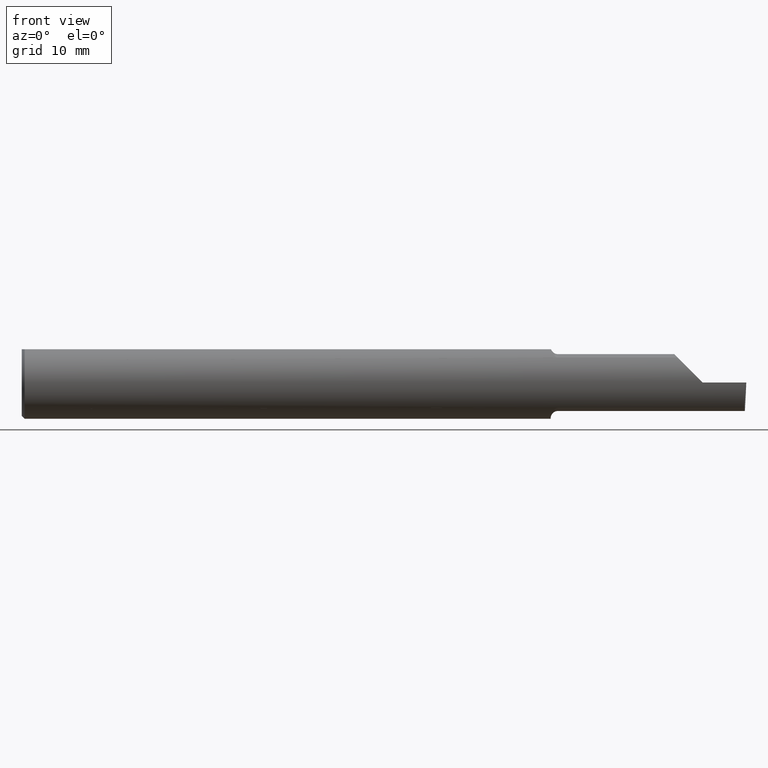
[diagram: clean part render]
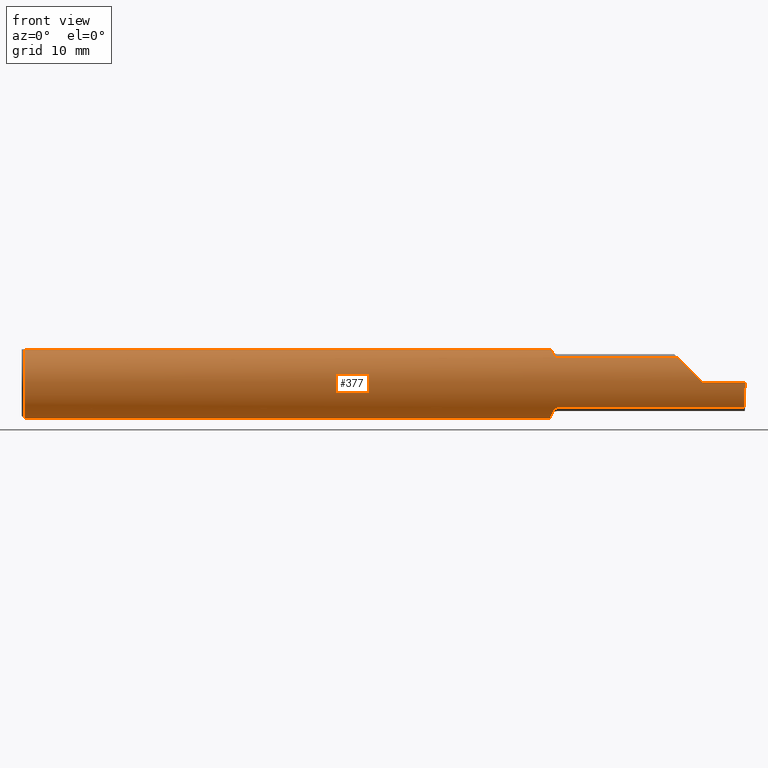
[diagram: same view with one face highlighted and labeled with its STEP entity id]
A machine part, front view. The second image highlights one B-rep face of the part: STEP entity #377.
In plain terms, the highlighted cylindrical surface (edge-blend (fillet) strip) has radius 3.175 mm, axis along (-1, -0, -0).
Its self-contained STEP definition (entity closure, byte-faithful):
#14 = CARTESIAN_POINT ( 'NONE',  ( 2.350000000000000089, -0.1250000000000000278, 1.836970198721028825E-17 ) ) ;
#24 = VECTOR ( 'NONE', #164, 39.37007874015748143 ) ;
#25 = CARTESIAN_POINT ( 'NONE',  ( 0.01000000000000042348, 0.000000000000000000, 0.000000000000000000 ) ) ;
#26 = ORIENTED_EDGE ( 'NONE', *, *, #247, .F. ) ;
#28 =( BOUNDED_CURVE ( )  B_SPLINE_CURVE ( 3, ( #49, #229, #670, #232 ),
 .UNSPECIFIED., .F., .F. ) 
 B_SPLINE_CURVE_WITH_KNOTS ( ( 4, 4 ),
 ( 0.3451966888490694552, 1.107331509589587926 ),
 .UNSPECIFIED. ) 
 CURVE ( )  GEOMETRIC_REPRESENTATION_ITEM ( )  RATIONAL_B_SPLINE_CURVE ( ( 1.000000000000000000, 0.9521787881681380572, 0.9521787881681380572, 1.000000000000000000 ) ) 
 REPRESENTATION_ITEM ( '' )  );
#29 = CARTESIAN_POINT ( 'NONE',  ( 1.834055883886139826, -0.07758562614434727500, 0.09811804109501491566 ) ) ;
#34 = VERTEX_POINT ( 'NONE', #697 ) ;
#36 = CARTESIAN_POINT ( 'NONE',  ( 1.845169762358874088, -0.08954173371311466290, 0.08723520050116025104 ) ) ;
#44 = DIRECTION ( 'NONE',  ( 1.000000000000000000, 0.000000000000000000, 0.000000000000000000 ) ) ;
#48 = ORIENTED_EDGE ( 'NONE', *, *, #448, .F. ) ;
#49 = CARTESIAN_POINT ( 'NONE',  ( 2.493431982762754462, -0.09042045454545424854, -0.08630840862739529162 ) ) ;
#51 = CARTESIAN_POINT ( 'NONE',  ( 1.839282510427138417, -0.08510692115742991837, -0.09158169095606871757 ) ) ;
#57 = VERTEX_POINT ( 'NONE', #72 ) ;
#66 = CARTESIAN_POINT ( 'NONE',  ( 2.263691591372603895, -0.09042045454545429017, 0.08630840862739526387 ) ) ;
#71 = DIRECTION ( 'NONE',  ( 0.000000000000000000, 0.000000000000000000, -1.000000000000000000 ) ) ;
#72 = CARTESIAN_POINT ( 'NONE',  ( 1.849999999999999867, -0.09042045454545424854, -0.08630840862739527775 ) ) ;
#83 = ORIENTED_EDGE ( 'NONE', *, *, #310, .F. ) ;
#88 = FACE_OUTER_BOUND ( 'NONE', #415, .T. ) ;
#89 = ORIENTED_EDGE ( 'NONE', *, *, #289, .F. ) ;
#92 = CARTESIAN_POINT ( 'NONE',  ( 1.829267307214415439, -0.06631395538221414310, 0.1063681193389229424 ) ) ;
#104 = CARTESIAN_POINT ( 'NONE',  ( 1.847488493957806455, -0.09042045454585180553, 0.08630840862697891636 ) ) ;
#105 = VERTEX_POINT ( 'NONE', #810 ) ;
#121 = CARTESIAN_POINT ( 'NONE',  ( 1.825730677800976975, -0.04400000000000007377, -0.1169999999999999790 ) ) ;
#137 = VERTEX_POINT ( 'NONE', #66 ) ;
#141 = CYLINDRICAL_SURFACE ( 'NONE', #693, 0.1250000000000000000 ) ;
#143 = CIRCLE ( 'NONE', #196, 0.1250000000000000000 ) ;
#146 = AXIS2_PLACEMENT_3D ( 'NONE', #236, #673, #614 ) ;
#147 = CARTESIAN_POINT ( 'NONE',  ( 1.849999999999999867, -0.09042045454545420691, 0.08630840862739531938 ) ) ;
#164 = DIRECTION ( 'NONE',  ( 1.000000000000000000, 0.000000000000000000, 0.000000000000000000 ) ) ;
#168 = VERTEX_POINT ( 'NONE', #680 ) ;
#171 = VECTOR ( 'NONE', #439, 39.37007874015748143 ) ;
#173 = CARTESIAN_POINT ( 'NONE',  ( 1.839945076695471249, -0.08578123596776329740, 0.09094459933485940506 ) ) ;
#186 = CARTESIAN_POINT ( 'NONE',  ( 1.849999999999999867, -0.09042045454545424854, -0.08630840862739527775 ) ) ;
#191 = CARTESIAN_POINT ( 'NONE',  ( 1.847250989814109845, -0.09042045454545424854, -0.08630840862739529162 ) ) ;
#196 = AXIS2_PLACEMENT_3D ( 'NONE', #622, #44, #545 ) ;
#204 = CARTESIAN_POINT ( 'NONE',  ( 2.166241705000000017, -0.09042045454545424854, -0.08630840862739529162 ) ) ;
#208 = CARTESIAN_POINT ( 'NONE',  ( 3.749399456654637998E-32, -0.1249999999999999861, 3.061616997868380183E-16 ) ) ;
#220 = ORIENTED_EDGE ( 'NONE', *, *, #300, .T. ) ;
#221 = CARTESIAN_POINT ( 'NONE',  ( 1.841446811421532770, -0.08721672169474591063, 0.08955973280246655455 ) ) ;
#222 = ORIENTED_EDGE ( 'NONE', *, *, #651, .F. ) ;
#229 = CARTESIAN_POINT ( 'NONE',  ( 2.493862026000344123, -0.1128945894460737925, -0.06276352435079128600 ) ) ;
#232 = CARTESIAN_POINT ( 'NONE',  ( 2.495842809704562626, -0.1250000000000000000, 0.000000000000000000 ) ) ;
#236 = CARTESIAN_POINT ( 'NONE',  ( 0.01000000000000042348, 0.000000000000000000, 0.000000000000000000 ) ) ;
#238 = CARTESIAN_POINT ( 'NONE',  ( 0.01000000000000042348, -0.04898979485566374442, 0.1149999999999999217 ) ) ;
#240 = B_SPLINE_CURVE_WITH_KNOTS ( 'NONE', 3,
 ( #246, #563, #612, #309 ),
 .UNSPECIFIED., .F., .F.,
 ( 4, 4 ),
 ( 0.001645996930207804711, 0.002084692492981586077 ),
 .UNSPECIFIED. ) ;
#246 = CARTESIAN_POINT ( 'NONE',  ( 1.825730677800976975, -0.04400000000000007377, -0.1169999999999999790 ) ) ;
#247 = EDGE_CURVE ( 'NONE', #668, #806, #736, .T. ) ;
#253 = CARTESIAN_POINT ( 'NONE',  ( 1.828809610961340759, -0.06315583524588901099, -0.1079992965090798840 ) ) ;
#284 = EDGE_CURVE ( 'NONE', #34, #105, #28, .T. ) ;
#289 = EDGE_CURVE ( 'NONE', #649, #720, #426, .T. ) ;
#300 = EDGE_CURVE ( 'NONE', #332, #720, #483, .T. ) ;
#309 = CARTESIAN_POINT ( 'NONE',  ( 1.824999999999999956, -0.02763636363636359436, -0.1219066503721543404 ) ) ;
#310 = EDGE_CURVE ( 'NONE', #34, #57, #636, .T. ) ;
#322 = CARTESIAN_POINT ( 'NONE',  ( 1.825730677800976975, -0.04400000000000007377, -0.1169999999999999790 ) ) ;
#329 = VECTOR ( 'NONE', #595, 39.37007874015748143 ) ;
#332 = VERTEX_POINT ( 'NONE', #343 ) ;
#334 = CARTESIAN_POINT ( 'NONE',  ( 2.263691591372603895, -0.09042045454545429017, 0.08630840862739526387 ) ) ;
#343 = CARTESIAN_POINT ( 'NONE',  ( 0.01000000000000042348, 0.000000000000000000, -0.1250000000000000000 ) ) ;
#346 = ORIENTED_EDGE ( 'NONE', *, *, #373, .T. ) ;
#350 = VERTEX_POINT ( 'NONE', #322 ) ;
#359 = AXIS2_PLACEMENT_3D ( 'NONE', #25, #705, #71 ) ;
#361 = ORIENTED_EDGE ( 'NONE', *, *, #284, .T. ) ;
#373 = EDGE_CURVE ( 'NONE', #668, #332, #449, .T. ) ;
#377 = ADVANCED_FACE ( 'NONE', ( #88 ), #141, .T. ) ;
#401 = CARTESIAN_POINT ( 'NONE',  ( 2.317450832343515454, -0.1250000000000000000, 0.03254916765648422500 ) ) ;
#414 = CARTESIAN_POINT ( 'NONE',  ( 1.824999999999999956, -0.02763636363636359436, -0.1219066503721543404 ) ) ;
#415 = EDGE_LOOP ( 'NONE', ( #83, #361, #662, #632, #48, #678, #26, #346, #220, #89, #567, #508, #222 ) ) ;
#417 = CARTESIAN_POINT ( 'NONE',  ( 1.827426556614087927, -0.05801934803183189659, 0.1111534264545055439 ) ) ;
#426 = LINE ( 'NONE', #791, #797 ) ;
#436 = CARTESIAN_POINT ( 'NONE',  ( 1.844768270659623566, -0.08937924045984925459, -0.08740614068309883467 ) ) ;
#439 = DIRECTION ( 'NONE',  ( -1.000000000000000000, -0.000000000000000000, -0.000000000000000000 ) ) ;
#441 = CARTESIAN_POINT ( 'NONE',  ( 1.840850385411617163, -0.08673035960621004736, -0.09003514189954220370 ) ) ;
#443 = CARTESIAN_POINT ( 'NONE',  ( 1.826893175330810415, -0.05388688644707111813, -0.1129101901561700982 ) ) ;
#448 = EDGE_CURVE ( 'NONE', #790, #137, #725, .T. ) ;
#449 = CIRCLE ( 'NONE', #359, 0.1250000000000000000 ) ;
#451 = DIRECTION ( 'NONE',  ( -1.000000000000000000, -0.000000000000000000, -0.000000000000000000 ) ) ;
#470 = EDGE_CURVE ( 'NONE', #806, #790, #543, .T. ) ;
#475 = VERTEX_POINT ( 'NONE', #414 ) ;
#483 = CIRCLE ( 'NONE', #146, 0.1250000000000000000 ) ;
#484 = CARTESIAN_POINT ( 'NONE',  ( 1.835190181894029049, -0.07991573988362392356, -0.09622915934337333832 ) ) ;
#508 = ORIENTED_EDGE ( 'NONE', *, *, #594, .F. ) ;
#510 = CARTESIAN_POINT ( 'NONE',  ( 2.287236475649208511, -0.1128945894460738203, 0.06276352435079116110 ) ) ;
#532 = CARTESIAN_POINT ( 'NONE',  ( 1.835996102358148363, -0.08116363444194787946, 0.09515685373904846089 ) ) ;
#534 = CARTESIAN_POINT ( 'NONE',  ( 1.826278290187167919, -0.04898979485482684443, 0.1149999999999999217 ) ) ;
#543 = B_SPLINE_CURVE_WITH_KNOTS ( 'NONE', 3,
 ( #534, #417, #92, #29, #532, #173, #221, #36, #104, #792 ),
 .UNSPECIFIED., .F., .F.,
 ( 4, 2, 2, 2, 4 ),
 ( 5.067393807887071825E-07, 0.0007430328995835643480, 0.001114295979684952476, 0.001299927519735646431, 0.001485559059786340603 ),
 .UNSPECIFIED. ) ;
#545 = DIRECTION ( 'NONE',  ( 0.000000000000000000, 0.000000000000000000, -1.000000000000000000 ) ) ;
#555 = CARTESIAN_POINT ( 'NONE',  ( 1.833239374200247518, -0.07597265459956457911, -0.09939534496909264993 ) ) ;
#563 = CARTESIAN_POINT ( 'NONE',  ( 1.825234743326751952, -0.03866586649758528560, -0.1190059989239850846 ) ) ;
#567 = ORIENTED_EDGE ( 'NONE', *, *, #696, .F. ) ;
#568 = DIRECTION ( 'NONE',  ( -1.000000000000000000, -0.000000000000000000, -0.000000000000000000 ) ) ;
#579 = CARTESIAN_POINT ( 'NONE',  ( 1.826278290187167919, -0.04898979485482684443, 0.1149999999999999217 ) ) ;
#594 = EDGE_CURVE ( 'NONE', #350, #475, #240, .T. ) ;
#595 = DIRECTION ( 'NONE',  ( 1.000000000000000000, 0.000000000000000000, 0.000000000000000000 ) ) ;
#599 = CARTESIAN_POINT ( 'NONE',  ( 2.166241705000000017, -0.09042045454545424854, 0.08630840862739529162 ) ) ;
#612 = CARTESIAN_POINT ( 'NONE',  ( 1.824999999999999956, -0.03321131449419131160, -0.1206428032506770692 ) ) ;
#614 = DIRECTION ( 'NONE',  ( 0.000000000000000000, 0.000000000000000000, -1.000000000000000000 ) ) ;
#622 = CARTESIAN_POINT ( 'NONE',  ( 1.824999999999999956, 0.000000000000000000, 0.000000000000000000 ) ) ;
#630 =( BOUNDED_CURVE ( )  B_SPLINE_CURVE ( 3, ( #14, #401, #510, #334 ),
 .UNSPECIFIED., .F., .F. ) 
 B_SPLINE_CURVE_WITH_KNOTS ( ( 4, 4 ),
 ( 4.712388980384689674, 5.474523801125207534 ),
 .UNSPECIFIED. ) 
 CURVE ( )  GEOMETRIC_REPRESENTATION_ITEM ( )  RATIONAL_B_SPLINE_CURVE ( ( 1.000000000000000000, 0.9521787881681380572, 0.9521787881681380572, 1.000000000000000000 ) ) 
 REPRESENTATION_ITEM ( '' )  );
#632 = ORIENTED_EDGE ( 'NONE', *, *, #722, .T. ) ;
#636 = LINE ( 'NONE', #204, #171 ) ;
#642 = CARTESIAN_POINT ( 'NONE',  ( 0.01000000000000042348, 0.04898979485566374442, 0.1149999999999999217 ) ) ;
#647 = LINE ( 'NONE', #208, #784 ) ;
#649 = VERTEX_POINT ( 'NONE', #745 ) ;
#651 = EDGE_CURVE ( 'NONE', #57, #350, #681, .T. ) ;
#652 = DIRECTION ( 'NONE',  ( 0.000000000000000000, 0.000000000000000000, 1.000000000000000000 ) ) ;
#662 = ORIENTED_EDGE ( 'NONE', *, *, #743, .T. ) ;
#668 = VERTEX_POINT ( 'NONE', #238 ) ;
#670 = CARTESIAN_POINT ( 'NONE',  ( 2.494705994581233099, -0.1250000000000000278, -0.03254916765648428745 ) ) ;
#673 = DIRECTION ( 'NONE',  ( 1.000000000000000000, 0.000000000000000000, 0.000000000000000000 ) ) ;
#678 = ORIENTED_EDGE ( 'NONE', *, *, #470, .F. ) ;
#680 = CARTESIAN_POINT ( 'NONE',  ( 2.350000000000000089, -0.1250000000000000278, 1.836970198721028825E-17 ) ) ;
#681 = B_SPLINE_CURVE_WITH_KNOTS ( 'NONE', 3,
 ( #186, #191, #436, #441, #51, #484, #555, #686, #253, #443, #801, #121 ),
 .UNSPECIFIED., .F., .F.,
 ( 4, 2, 2, 2, 2, 4 ),
 ( 1.964009442425878487E-07, 0.0002059214671021842116, 0.0004116465332601258308, 0.0008230966655760187187, 0.001234546797891911607, 0.001645996930207804711 ),
 .UNSPECIFIED. ) ;
#686 = CARTESIAN_POINT ( 'NONE',  ( 1.830023755285531184, -0.06757875350159905925, -0.1052824340695055760 ) ) ;
#693 = AXIS2_PLACEMENT_3D ( 'NONE', #767, #568, #652 ) ;
#696 = EDGE_CURVE ( 'NONE', #475, #649, #143, .T. ) ;
#697 = CARTESIAN_POINT ( 'NONE',  ( 2.493431982762754462, -0.09042045454545424854, -0.08630840862739529162 ) ) ;
#705 = DIRECTION ( 'NONE',  ( 1.000000000000000000, 0.000000000000000000, 0.000000000000000000 ) ) ;
#720 = VERTEX_POINT ( 'NONE', #642 ) ;
#722 = EDGE_CURVE ( 'NONE', #168, #137, #630, .T. ) ;
#723 = CARTESIAN_POINT ( 'NONE',  ( 0.000000000000000000, -0.04898979485566374442, 0.1149999999999999217 ) ) ;
#725 = LINE ( 'NONE', #599, #329 ) ;
#733 = DIRECTION ( 'NONE',  ( -1.000000000000000000, -0.000000000000000000, -0.000000000000000000 ) ) ;
#736 = LINE ( 'NONE', #723, #24 ) ;
#743 = EDGE_CURVE ( 'NONE', #105, #168, #647, .T. ) ;
#745 = CARTESIAN_POINT ( 'NONE',  ( 1.824999999999999956, 0.04898979485566374442, 0.1149999999999999217 ) ) ;
#767 = CARTESIAN_POINT ( 'NONE',  ( 0.000000000000000000, 0.000000000000000000, 0.000000000000000000 ) ) ;
#784 = VECTOR ( 'NONE', #451, 39.37007874015748143 ) ;
#790 = VERTEX_POINT ( 'NONE', #147 ) ;
#791 = CARTESIAN_POINT ( 'NONE',  ( 0.000000000000000000, 0.04898979485566374442, 0.1149999999999999217 ) ) ;
#792 = CARTESIAN_POINT ( 'NONE',  ( 1.849999999999999867, -0.09042045454545420691, 0.08630840862739531938 ) ) ;
#797 = VECTOR ( 'NONE', #733, 39.37007874015748143 ) ;
#801 = CARTESIAN_POINT ( 'NONE',  ( 1.826195811990450002, -0.04900285419228610218, -0.1151185847481999980 ) ) ;
#806 = VERTEX_POINT ( 'NONE', #579 ) ;
#810 = CARTESIAN_POINT ( 'NONE',  ( 2.495842809704562626, -0.1250000000000000000, 0.000000000000000000 ) ) ;